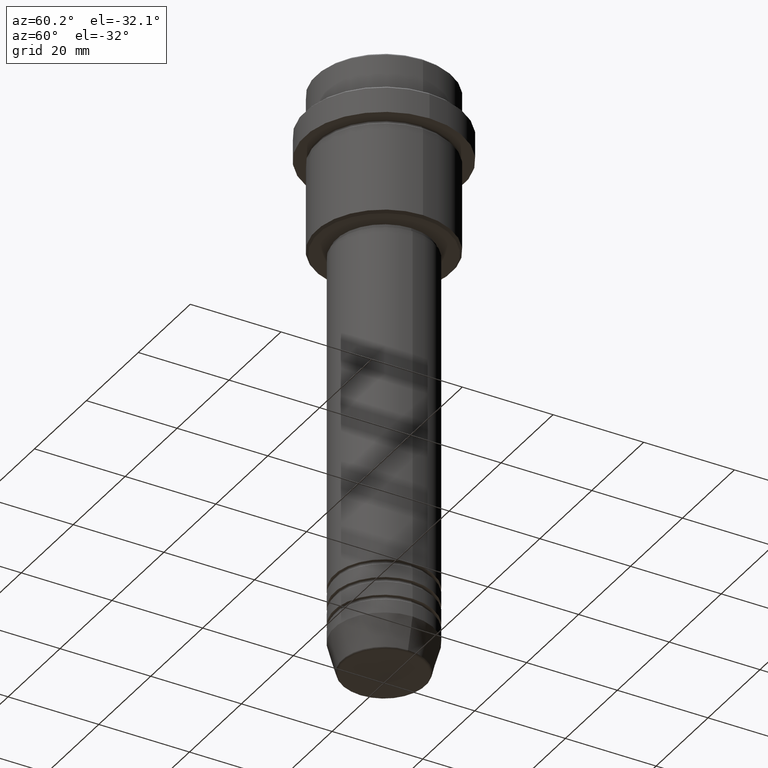
[diagram: clean part render]
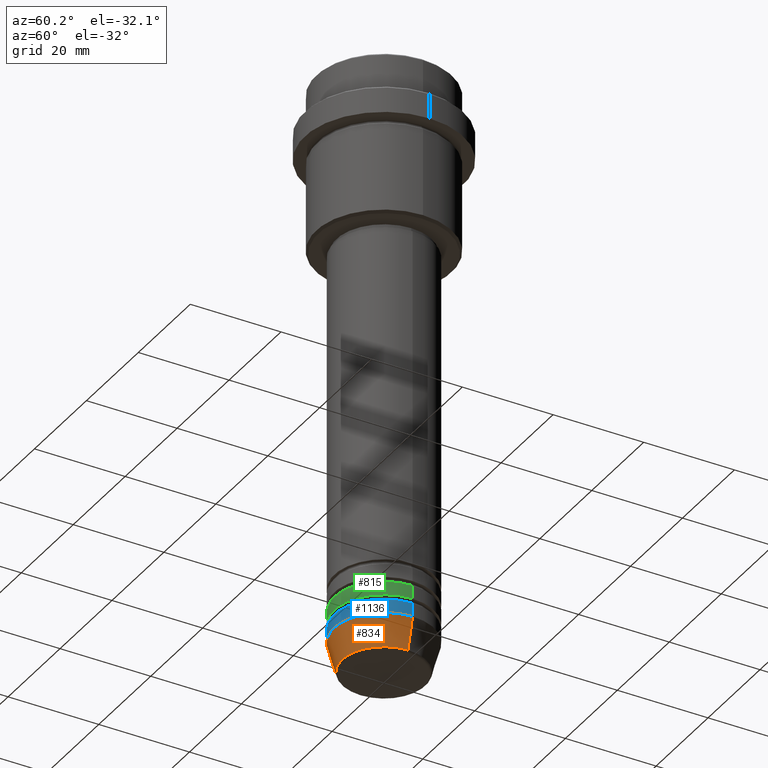
[diagram: same view with three faces highlighted in distinct colors, each labeled with its STEP entity id]
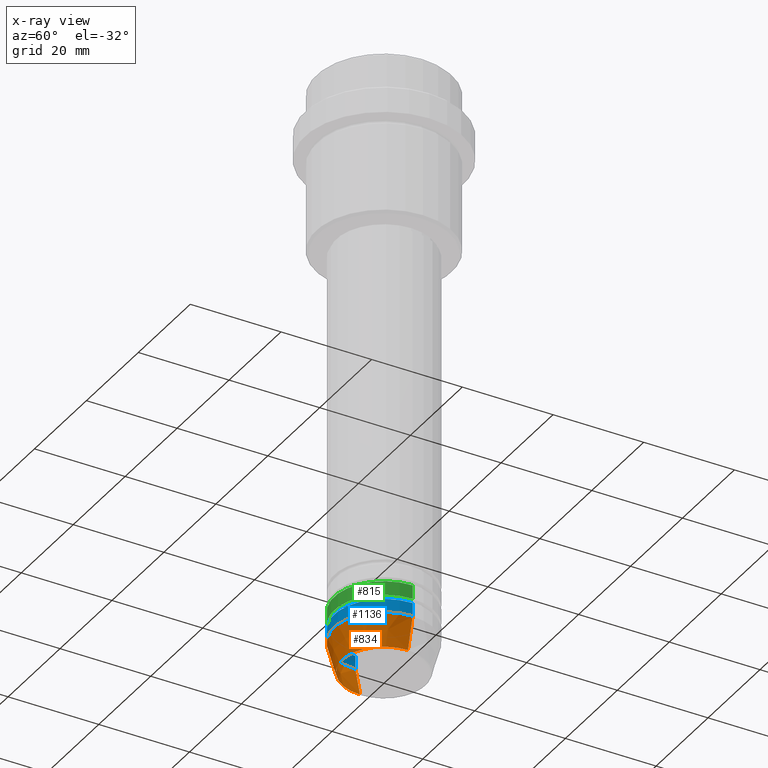
[diagram: x-ray of the same camera — body ghosted, the three highlighted faces saturated]
A machine part, auxiliary view with three faces highlighted in distinct colors.
The next image is the same camera in x-ray (body ghosted, the three faces saturated) — at least one of them is partly hidden behind the body in this view.
Their STEP definitions:

[orange] entity #834 — the highlighted conical surface has half-angle 15 deg.
#29 = ORIENTED_EDGE ( 'NONE', *, *, #739, .F. ) ;
#71 = CARTESIAN_POINT ( 'NONE',  ( 9.223655072137187716, 0.000000000000000000, -130.6294095225512422 ) ) ;
#108 = DIRECTION ( 'NONE',  ( -0.000000000000000000, -0.000000000000000000, 1.000000000000000000 ) ) ;
#149 = VERTEX_POINT ( 'NONE', #581 ) ;
#171 = LINE ( 'NONE', #622, #1289 ) ;
#188 = FACE_OUTER_BOUND ( 'NONE', #1342, .T. ) ;
#236 = DIRECTION ( 'NONE',  ( -0.2588190451025213501, 3.169619151431772337E-17, 0.9659258262890680902 ) ) ;
#244 = ORIENTED_EDGE ( 'NONE', *, *, #1300, .F. ) ;
#262 = CARTESIAN_POINT ( 'NONE',  ( -9.223655072137187716, 1.238341722557647004E-15, -130.6294095225512422 ) ) ;
#356 = CIRCLE ( 'NONE', #1159, 11.00000000000000000 ) ;
#368 = CARTESIAN_POINT ( 'NONE',  ( -11.00000000000000000, 1.347111479062088405E-15, -124.0000000000000000 ) ) ;
#393 = CARTESIAN_POINT ( 'NONE',  ( 0.000000000000000000, 0.000000000000000000, -130.6294095225512422 ) ) ;
#447 = VERTEX_POINT ( 'NONE', #262 ) ;
#522 = AXIS2_PLACEMENT_3D ( 'NONE', #856, #108, #558 ) ;
#558 = DIRECTION ( 'NONE',  ( 1.000000000000000000, 0.000000000000000000, 0.000000000000000000 ) ) ;
#580 = VECTOR ( 'NONE', #236, 1000.000000000000000 ) ;
#581 = CARTESIAN_POINT ( 'NONE',  ( -11.00000000000000000, 1.347111479062088405E-15, -124.0000000000000000 ) ) ;
#594 = VERTEX_POINT ( 'NONE', #71 ) ;
#613 = EDGE_CURVE ( 'NONE', #594, #925, #171, .T. ) ;
#622 = CARTESIAN_POINT ( 'NONE',  ( 11.00000000000000000, 0.000000000000000000, -124.0000000000000000 ) ) ;
#704 = DIRECTION ( 'NONE',  ( 1.000000000000000000, 0.000000000000000000, 0.000000000000000000 ) ) ;
#730 = DIRECTION ( 'NONE',  ( 0.2588190451025213501, 0.000000000000000000, 0.9659258262890680902 ) ) ;
#739 = EDGE_CURVE ( 'NONE', #149, #925, #356, .T. ) ;
#778 = CARTESIAN_POINT ( 'NONE',  ( 11.00000000000000000, 0.000000000000000000, -124.0000000000000000 ) ) ;
#834 = ADVANCED_FACE ( 'NONE', ( #188 ), #1140, .T. ) ;
#855 = DIRECTION ( 'NONE',  ( 1.000000000000000000, 0.000000000000000000, 0.000000000000000000 ) ) ;
#856 = CARTESIAN_POINT ( 'NONE',  ( 0.000000000000000000, 0.000000000000000000, -124.0000000000000000 ) ) ;
#892 = AXIS2_PLACEMENT_3D ( 'NONE', #393, #1257, #855 ) ;
#925 = VERTEX_POINT ( 'NONE', #778 ) ;
#930 = DIRECTION ( 'NONE',  ( -0.000000000000000000, -0.000000000000000000, 1.000000000000000000 ) ) ;
#1046 = ORIENTED_EDGE ( 'NONE', *, *, #613, .T. ) ;
#1140 = CONICAL_SURFACE ( 'NONE', #522, 11.00000000000000000, 0.2617993877991500740 ) ;
#1159 = AXIS2_PLACEMENT_3D ( 'NONE', #1219, #930, #704 ) ;
#1193 = ORIENTED_EDGE ( 'NONE', *, *, #1194, .T. ) ;
#1194 = EDGE_CURVE ( 'NONE', #447, #594, #1337, .T. ) ;
#1214 = LINE ( 'NONE', #368, #580 ) ;
#1219 = CARTESIAN_POINT ( 'NONE',  ( 0.000000000000000000, 0.000000000000000000, -124.0000000000000000 ) ) ;
#1257 = DIRECTION ( 'NONE',  ( -0.000000000000000000, -0.000000000000000000, 1.000000000000000000 ) ) ;
#1289 = VECTOR ( 'NONE', #730, 1000.000000000000000 ) ;
#1300 = EDGE_CURVE ( 'NONE', #447, #149, #1214, .T. ) ;
#1337 = CIRCLE ( 'NONE', #892, 9.223655072137187716 ) ;
#1342 = EDGE_LOOP ( 'NONE', ( #244, #1193, #1046, #29 ) ) ;

[blue] entity #1136 — the highlighted cylindrical surface (partial cylindrical patch) has radius 11 mm, axis along (-0, -0, 1).
#46 = DIRECTION ( 'NONE',  ( -0.000000000000000000, -0.000000000000000000, 1.000000000000000000 ) ) ;
#137 = LINE ( 'NONE', #1340, #848 ) ;
#149 = VERTEX_POINT ( 'NONE', #581 ) ;
#232 = CYLINDRICAL_SURFACE ( 'NONE', #1204, 11.00000000000000000 ) ;
#277 = EDGE_CURVE ( 'NONE', #925, #1178, #968, .T. ) ;
#299 = DIRECTION ( 'NONE',  ( -0.000000000000000000, -0.000000000000000000, 1.000000000000000000 ) ) ;
#356 = CIRCLE ( 'NONE', #1159, 11.00000000000000000 ) ;
#398 = EDGE_CURVE ( 'NONE', #149, #536, #137, .T. ) ;
#465 = DIRECTION ( 'NONE',  ( -0.000000000000000000, -0.000000000000000000, 1.000000000000000000 ) ) ;
#489 = ORIENTED_EDGE ( 'NONE', *, *, #398, .F. ) ;
#536 = VERTEX_POINT ( 'NONE', #1360 ) ;
#572 = FACE_OUTER_BOUND ( 'NONE', #1274, .T. ) ;
#581 = CARTESIAN_POINT ( 'NONE',  ( -11.00000000000000000, 1.347111479062088405E-15, -124.0000000000000000 ) ) ;
#607 = AXIS2_PLACEMENT_3D ( 'NONE', #1017, #1108, #1336 ) ;
#656 = CARTESIAN_POINT ( 'NONE',  ( 11.00000000000000000, 0.000000000000000000, 0.000000000000000000 ) ) ;
#683 = CARTESIAN_POINT ( 'NONE',  ( 0.000000000000000000, 0.000000000000000000, 0.000000000000000000 ) ) ;
#687 = ORIENTED_EDGE ( 'NONE', *, *, #739, .T. ) ;
#695 = CARTESIAN_POINT ( 'NONE',  ( 11.00000000000000000, 0.000000000000000000, -121.0000000000000000 ) ) ;
#704 = DIRECTION ( 'NONE',  ( 1.000000000000000000, 0.000000000000000000, 0.000000000000000000 ) ) ;
#717 = VECTOR ( 'NONE', #299, 1000.000000000000000 ) ;
#739 = EDGE_CURVE ( 'NONE', #149, #925, #356, .T. ) ;
#778 = CARTESIAN_POINT ( 'NONE',  ( 11.00000000000000000, 0.000000000000000000, -124.0000000000000000 ) ) ;
#848 = VECTOR ( 'NONE', #465, 1000.000000000000000 ) ;
#925 = VERTEX_POINT ( 'NONE', #778 ) ;
#930 = DIRECTION ( 'NONE',  ( -0.000000000000000000, -0.000000000000000000, 1.000000000000000000 ) ) ;
#968 = LINE ( 'NONE', #656, #717 ) ;
#1017 = CARTESIAN_POINT ( 'NONE',  ( 0.000000000000000000, 0.000000000000000000, -121.0000000000000000 ) ) ;
#1027 = DIRECTION ( 'NONE',  ( 1.000000000000000000, 0.000000000000000000, 0.000000000000000000 ) ) ;
#1037 = ORIENTED_EDGE ( 'NONE', *, *, #277, .T. ) ;
#1041 = ORIENTED_EDGE ( 'NONE', *, *, #1045, .F. ) ;
#1045 = EDGE_CURVE ( 'NONE', #536, #1178, #1203, .T. ) ;
#1108 = DIRECTION ( 'NONE',  ( -0.000000000000000000, -0.000000000000000000, 1.000000000000000000 ) ) ;
#1136 = ADVANCED_FACE ( 'NONE', ( #572 ), #232, .T. ) ;
#1159 = AXIS2_PLACEMENT_3D ( 'NONE', #1219, #930, #704 ) ;
#1178 = VERTEX_POINT ( 'NONE', #695 ) ;
#1203 = CIRCLE ( 'NONE', #607, 11.00000000000000000 ) ;
#1204 = AXIS2_PLACEMENT_3D ( 'NONE', #683, #46, #1027 ) ;
#1219 = CARTESIAN_POINT ( 'NONE',  ( 0.000000000000000000, 0.000000000000000000, -124.0000000000000000 ) ) ;
#1274 = EDGE_LOOP ( 'NONE', ( #489, #687, #1037, #1041 ) ) ;
#1336 = DIRECTION ( 'NONE',  ( 1.000000000000000000, 0.000000000000000000, 0.000000000000000000 ) ) ;
#1340 = CARTESIAN_POINT ( 'NONE',  ( -11.00000000000000000, 1.347111479062088405E-15, 0.000000000000000000 ) ) ;
#1360 = CARTESIAN_POINT ( 'NONE',  ( -11.00000000000000000, 1.347111479062088405E-15, -121.0000000000000000 ) ) ;

[green] entity #815 — the highlighted cylindrical surface (partial cylindrical patch) has radius 11 mm, axis along (-0, -0, 1).
#81 = AXIS2_PLACEMENT_3D ( 'NONE', #1019, #1212, #1217 ) ;
#145 = LINE ( 'NONE', #344, #1275 ) ;
#170 = ORIENTED_EDGE ( 'NONE', *, *, #1281, .F. ) ;
#204 = VERTEX_POINT ( 'NONE', #1126 ) ;
#216 = ORIENTED_EDGE ( 'NONE', *, *, #625, .T. ) ;
#246 = AXIS2_PLACEMENT_3D ( 'NONE', #966, #850, #662 ) ;
#249 = DIRECTION ( 'NONE',  ( -0.000000000000000000, -0.000000000000000000, 1.000000000000000000 ) ) ;
#344 = CARTESIAN_POINT ( 'NONE',  ( -11.00000000000000000, 1.347111479062088405E-15, 0.000000000000000000 ) ) ;
#383 = EDGE_CURVE ( 'NONE', #760, #204, #664, .T. ) ;
#416 = EDGE_CURVE ( 'NONE', #1016, #872, #1306, .T. ) ;
#439 = ORIENTED_EDGE ( 'NONE', *, *, #416, .T. ) ;
#539 = FACE_OUTER_BOUND ( 'NONE', #1416, .T. ) ;
#566 = DIRECTION ( 'NONE',  ( 1.000000000000000000, 0.000000000000000000, 0.000000000000000000 ) ) ;
#593 = CARTESIAN_POINT ( 'NONE',  ( 0.000000000000000000, 0.000000000000000000, -116.9999999999998863 ) ) ;
#625 = EDGE_CURVE ( 'NONE', #872, #204, #1269, .T. ) ;
#662 = DIRECTION ( 'NONE',  ( 1.000000000000000000, 0.000000000000000000, 0.000000000000000000 ) ) ;
#664 = CIRCLE ( 'NONE', #1006, 11.00000000000000000 ) ;
#760 = VERTEX_POINT ( 'NONE', #1003 ) ;
#763 = CARTESIAN_POINT ( 'NONE',  ( -11.00000000000000000, 1.347111479062088405E-15, -119.9999999999998579 ) ) ;
#787 = DIRECTION ( 'NONE',  ( -0.000000000000000000, -0.000000000000000000, 1.000000000000000000 ) ) ;
#815 = ADVANCED_FACE ( 'NONE', ( #539 ), #1074, .T. ) ;
#850 = DIRECTION ( 'NONE',  ( -0.000000000000000000, -0.000000000000000000, 1.000000000000000000 ) ) ;
#872 = VERTEX_POINT ( 'NONE', #1398 ) ;
#914 = VECTOR ( 'NONE', #1256, 1000.000000000000000 ) ;
#940 = CARTESIAN_POINT ( 'NONE',  ( 11.00000000000000000, 0.000000000000000000, 0.000000000000000000 ) ) ;
#966 = CARTESIAN_POINT ( 'NONE',  ( 0.000000000000000000, 0.000000000000000000, 0.000000000000000000 ) ) ;
#1003 = CARTESIAN_POINT ( 'NONE',  ( -11.00000000000000000, 1.347111479062088405E-15, -116.9999999999998863 ) ) ;
#1006 = AXIS2_PLACEMENT_3D ( 'NONE', #593, #787, #566 ) ;
#1016 = VERTEX_POINT ( 'NONE', #763 ) ;
#1019 = CARTESIAN_POINT ( 'NONE',  ( 0.000000000000000000, 0.000000000000000000, -119.9999999999998579 ) ) ;
#1074 = CYLINDRICAL_SURFACE ( 'NONE', #246, 11.00000000000000000 ) ;
#1126 = CARTESIAN_POINT ( 'NONE',  ( 11.00000000000000000, 0.000000000000000000, -116.9999999999998863 ) ) ;
#1212 = DIRECTION ( 'NONE',  ( -0.000000000000000000, -0.000000000000000000, 1.000000000000000000 ) ) ;
#1217 = DIRECTION ( 'NONE',  ( 1.000000000000000000, 0.000000000000000000, 0.000000000000000000 ) ) ;
#1256 = DIRECTION ( 'NONE',  ( -0.000000000000000000, -0.000000000000000000, 1.000000000000000000 ) ) ;
#1269 = LINE ( 'NONE', #940, #914 ) ;
#1275 = VECTOR ( 'NONE', #249, 1000.000000000000000 ) ;
#1281 = EDGE_CURVE ( 'NONE', #1016, #760, #145, .T. ) ;
#1306 = CIRCLE ( 'NONE', #81, 11.00000000000000000 ) ;
#1373 = ORIENTED_EDGE ( 'NONE', *, *, #383, .F. ) ;
#1398 = CARTESIAN_POINT ( 'NONE',  ( 11.00000000000000000, 0.000000000000000000, -119.9999999999998579 ) ) ;
#1416 = EDGE_LOOP ( 'NONE', ( #170, #439, #216, #1373 ) ) ;